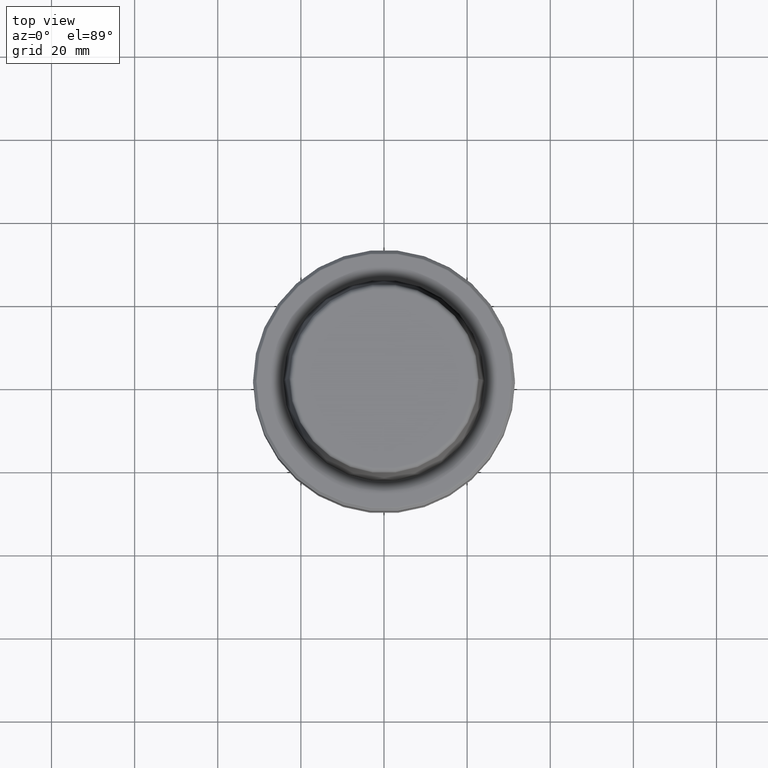
[diagram: clean part render]
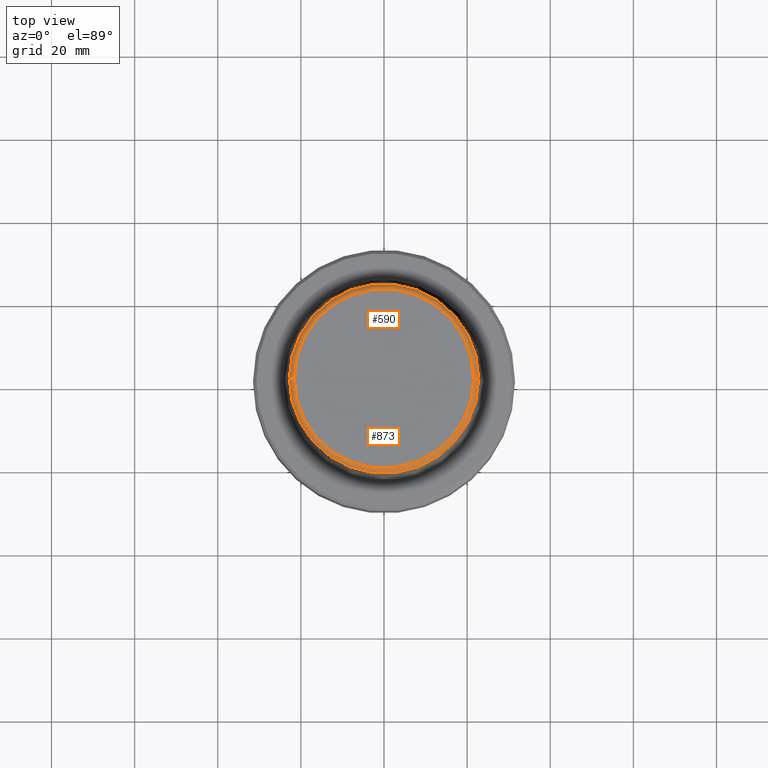
[diagram: same view with one multi-face feature highlighted, each face labeled with its STEP entity id]
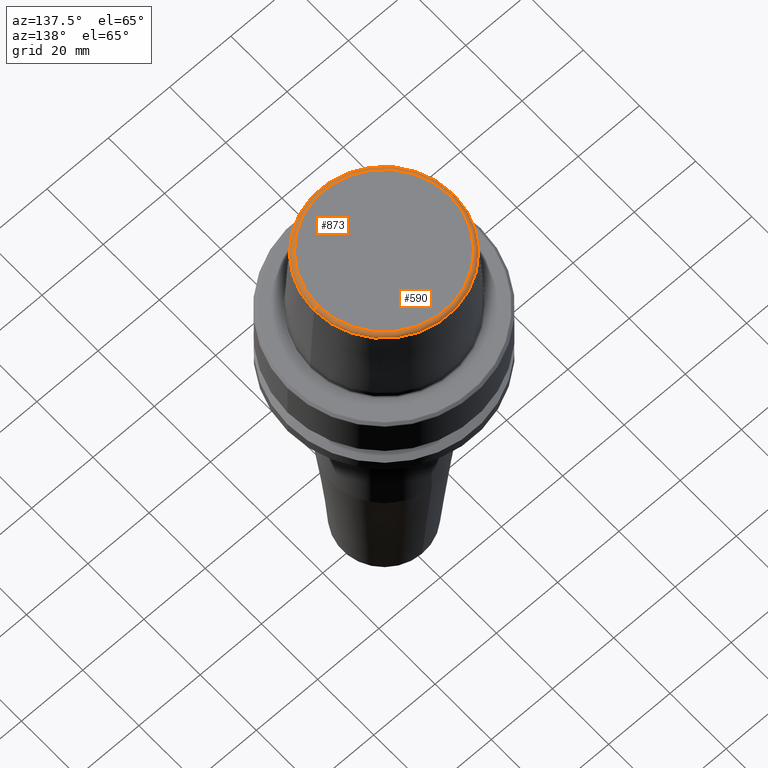
[diagram: same view with one multi-face feature highlighted, each face labeled with its STEP entity id]
A machine part, top view. The highlighted faces form ONE feature: a constant-radius fillet chain: 2 tangent blend faces with common blend radius 1.2 mm. The faces share edges in the B-rep.
A second angle (auxiliary view) of the same feature is appended — it is thin or edge-on in the first view.
Their STEP definitions:
[1] entity #590 (Torus):
#58 = CIRCLE ( 'NONE', #264, 21.58108272732117100 ) ;
#85 = CARTESIAN_POINT ( 'NONE',  ( 21.58108272732117100, 0.0000000000000000000, 30.69999999999999200 ) ) ;
#94 = CIRCLE ( 'NONE', #1080, 22.77957961851797100 ) ;
#101 = DIRECTION ( 'NONE',  ( -1.000000000000000000, 1.224646799147353200E-016, 0.0000000000000000000 ) ) ;
#158 = CARTESIAN_POINT ( 'NONE',  ( 0.0000000000000000000, 0.0000000000000000000, 30.69999999999999200 ) ) ;
#162 = CARTESIAN_POINT ( 'NONE',  ( -22.77957961851797100, 0.0000000000000000000, 30.76004333261571900 ) ) ;
#178 = DIRECTION ( 'NONE',  ( 0.0000000000000000000, 0.0000000000000000000, -1.000000000000000000 ) ) ;
#191 = EDGE_CURVE ( 'NONE', #252, #303, #663, .T. ) ;
#242 = VERTEX_POINT ( 'NONE', #1130 ) ;
#252 = VERTEX_POINT ( 'NONE', #162 ) ;
#264 = AXIS2_PLACEMENT_3D ( 'NONE', #819, #675, #826 ) ;
#272 = ORIENTED_EDGE ( 'NONE', *, *, #191, .T. ) ;
#301 = AXIS2_PLACEMENT_3D ( 'NONE', #85, #744, #178 ) ;
#303 = VERTEX_POINT ( 'NONE', #1016 ) ;
#305 = CIRCLE ( 'NONE', #301, 1.200000000000003100 ) ;
#351 = DIRECTION ( 'NONE',  ( 1.000000000000000000, 0.0000000000000000000, 0.0000000000000000000 ) ) ;
#357 = CARTESIAN_POINT ( 'NONE',  ( 22.77957961851797100, 2.876386432489616700E-015, 30.76004333261571900 ) ) ;
#365 = CARTESIAN_POINT ( 'NONE',  ( 0.0000000000000000000, 0.0000000000000000000, 30.76004333261571900 ) ) ;
#447 = EDGE_CURVE ( 'NONE', #242, #303, #58, .T. ) ;
#460 = DIRECTION ( 'NONE',  ( 1.000000000000000000, 0.0000000000000000000, 0.0000000000000000000 ) ) ;
#465 = FACE_OUTER_BOUND ( 'NONE', #1047, .T. ) ;
#530 = ORIENTED_EDGE ( 'NONE', *, *, #447, .F. ) ;
#590 = ADVANCED_FACE ( 'NONE', ( #465 ), #1098, .T. ) ;
#663 = CIRCLE ( 'NONE', #864, 1.200000000000003100 ) ;
#675 = DIRECTION ( 'NONE',  ( -0.0000000000000000000, -0.0000000000000000000, 1.000000000000000000 ) ) ;
#744 = DIRECTION ( 'NONE',  ( 0.0000000000000000000, -1.000000000000000000, 0.0000000000000000000 ) ) ;
#819 = CARTESIAN_POINT ( 'NONE',  ( 0.0000000000000000000, 0.0000000000000000000, 31.89999999999999900 ) ) ;
#826 = DIRECTION ( 'NONE',  ( 1.000000000000000000, 0.0000000000000000000, 0.0000000000000000000 ) ) ;
#853 = CARTESIAN_POINT ( 'NONE',  ( -21.58108272732117100, 2.642920388414810300E-015, 30.69999999999999200 ) ) ;
#864 = AXIS2_PLACEMENT_3D ( 'NONE', #853, #963, #101 ) ;
#913 = DIRECTION ( 'NONE',  ( -0.0000000000000000000, -0.0000000000000000000, 1.000000000000000000 ) ) ;
#917 = ORIENTED_EDGE ( 'NONE', *, *, #983, .T. ) ;
#963 = DIRECTION ( 'NONE',  ( 1.224646799147353200E-016, 1.000000000000000000, 0.0000000000000000000 ) ) ;
#976 = VERTEX_POINT ( 'NONE', #357 ) ;
#983 = EDGE_CURVE ( 'NONE', #976, #252, #94, .T. ) ;
#992 = ORIENTED_EDGE ( 'NONE', *, *, #1013, .F. ) ;
#1013 = EDGE_CURVE ( 'NONE', #976, #242, #305, .T. ) ;
#1016 = CARTESIAN_POINT ( 'NONE',  ( -21.58108272732117100, 2.716307157494421400E-015, 31.89999999999999900 ) ) ;
#1037 = DIRECTION ( 'NONE',  ( -0.0000000000000000000, -0.0000000000000000000, 1.000000000000000000 ) ) ;
#1047 = EDGE_LOOP ( 'NONE', ( #917, #272, #530, #992 ) ) ;
#1080 = AXIS2_PLACEMENT_3D ( 'NONE', #365, #1037, #460 ) ;
#1098 = TOROIDAL_SURFACE ( 'NONE', #1238, 21.58108272732117100, 1.200000000000003100 ) ;
#1130 = CARTESIAN_POINT ( 'NONE',  ( 21.58108272732117100, 0.0000000000000000000, 31.89999999999999900 ) ) ;
#1238 = AXIS2_PLACEMENT_3D ( 'NONE', #158, #913, #351 ) ;
[2] entity #873 (Torus):
#85 = CARTESIAN_POINT ( 'NONE',  ( 21.58108272732117100, 0.0000000000000000000, 30.69999999999999200 ) ) ;
#101 = DIRECTION ( 'NONE',  ( -1.000000000000000000, 1.224646799147353200E-016, 0.0000000000000000000 ) ) ;
#104 = DIRECTION ( 'NONE',  ( -0.0000000000000000000, -0.0000000000000000000, 1.000000000000000000 ) ) ;
#161 = DIRECTION ( 'NONE',  ( -0.0000000000000000000, -0.0000000000000000000, 1.000000000000000000 ) ) ;
#162 = CARTESIAN_POINT ( 'NONE',  ( -22.77957961851797100, 0.0000000000000000000, 30.76004333261571900 ) ) ;
#178 = DIRECTION ( 'NONE',  ( 0.0000000000000000000, 0.0000000000000000000, -1.000000000000000000 ) ) ;
#191 = EDGE_CURVE ( 'NONE', #252, #303, #663, .T. ) ;
#242 = VERTEX_POINT ( 'NONE', #1130 ) ;
#252 = VERTEX_POINT ( 'NONE', #162 ) ;
#298 = CARTESIAN_POINT ( 'NONE',  ( 0.0000000000000000000, 0.0000000000000000000, 30.69999999999999200 ) ) ;
#301 = AXIS2_PLACEMENT_3D ( 'NONE', #85, #744, #178 ) ;
#303 = VERTEX_POINT ( 'NONE', #1016 ) ;
#304 = CARTESIAN_POINT ( 'NONE',  ( 0.0000000000000000000, 0.0000000000000000000, 31.89999999999999900 ) ) ;
#305 = CIRCLE ( 'NONE', #301, 1.200000000000003100 ) ;
#317 = ORIENTED_EDGE ( 'NONE', *, *, #884, .F. ) ;
#346 = DIRECTION ( 'NONE',  ( 1.000000000000000000, 0.0000000000000000000, 0.0000000000000000000 ) ) ;
#357 = CARTESIAN_POINT ( 'NONE',  ( 22.77957961851797100, 2.876386432489616700E-015, 30.76004333261571900 ) ) ;
#368 = ORIENTED_EDGE ( 'NONE', *, *, #1013, .T. ) ;
#402 = DIRECTION ( 'NONE',  ( 1.000000000000000000, 0.0000000000000000000, 0.0000000000000000000 ) ) ;
#408 = DIRECTION ( 'NONE',  ( 1.000000000000000000, 0.0000000000000000000, 0.0000000000000000000 ) ) ;
#467 = CIRCLE ( 'NONE', #800, 21.58108272732117100 ) ;
#571 = EDGE_CURVE ( 'NONE', #252, #976, #731, .T. ) ;
#584 = FACE_OUTER_BOUND ( 'NONE', #1175, .T. ) ;
#663 = CIRCLE ( 'NONE', #864, 1.200000000000003100 ) ;
#712 = ORIENTED_EDGE ( 'NONE', *, *, #191, .F. ) ;
#731 = CIRCLE ( 'NONE', #969, 22.77957961851797100 ) ;
#735 = AXIS2_PLACEMENT_3D ( 'NONE', #298, #104, #402 ) ;
#744 = DIRECTION ( 'NONE',  ( 0.0000000000000000000, -1.000000000000000000, 0.0000000000000000000 ) ) ;
#758 = ORIENTED_EDGE ( 'NONE', *, *, #571, .T. ) ;
#800 = AXIS2_PLACEMENT_3D ( 'NONE', #304, #971, #408 ) ;
#845 = TOROIDAL_SURFACE ( 'NONE', #735, 21.58108272732117100, 1.200000000000003100 ) ;
#853 = CARTESIAN_POINT ( 'NONE',  ( -21.58108272732117100, 2.642920388414810300E-015, 30.69999999999999200 ) ) ;
#864 = AXIS2_PLACEMENT_3D ( 'NONE', #853, #963, #101 ) ;
#873 = ADVANCED_FACE ( 'NONE', ( #584 ), #845, .T. ) ;
#884 = EDGE_CURVE ( 'NONE', #303, #242, #467, .T. ) ;
#963 = DIRECTION ( 'NONE',  ( 1.224646799147353200E-016, 1.000000000000000000, 0.0000000000000000000 ) ) ;
#969 = AXIS2_PLACEMENT_3D ( 'NONE', #1201, #161, #346 ) ;
#971 = DIRECTION ( 'NONE',  ( -0.0000000000000000000, -0.0000000000000000000, 1.000000000000000000 ) ) ;
#976 = VERTEX_POINT ( 'NONE', #357 ) ;
#1013 = EDGE_CURVE ( 'NONE', #976, #242, #305, .T. ) ;
#1016 = CARTESIAN_POINT ( 'NONE',  ( -21.58108272732117100, 2.716307157494421400E-015, 31.89999999999999900 ) ) ;
#1130 = CARTESIAN_POINT ( 'NONE',  ( 21.58108272732117100, 0.0000000000000000000, 31.89999999999999900 ) ) ;
#1175 = EDGE_LOOP ( 'NONE', ( #712, #758, #368, #317 ) ) ;
#1201 = CARTESIAN_POINT ( 'NONE',  ( 0.0000000000000000000, 0.0000000000000000000, 30.76004333261571900 ) ) ;